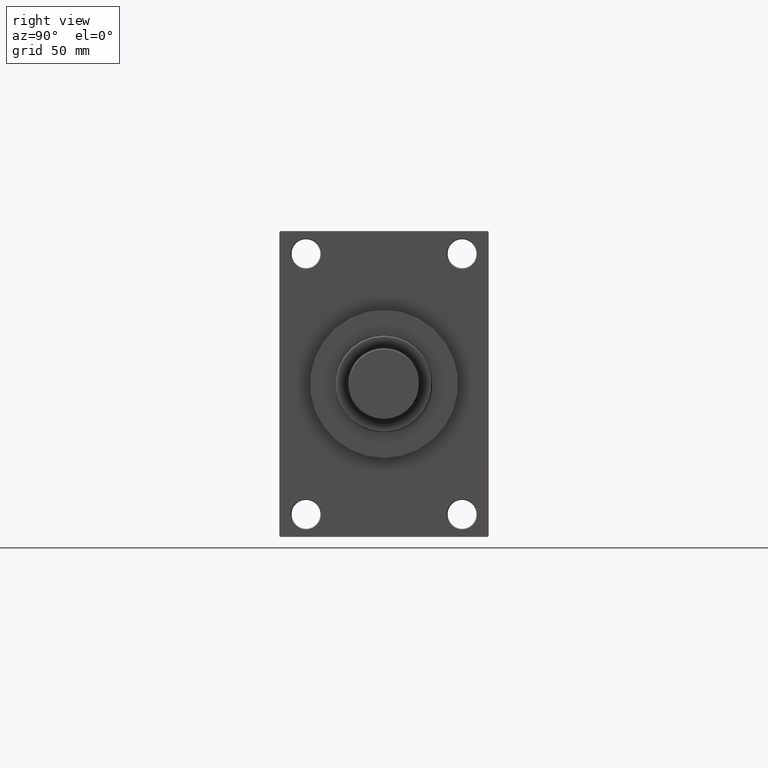
[diagram: clean part render]
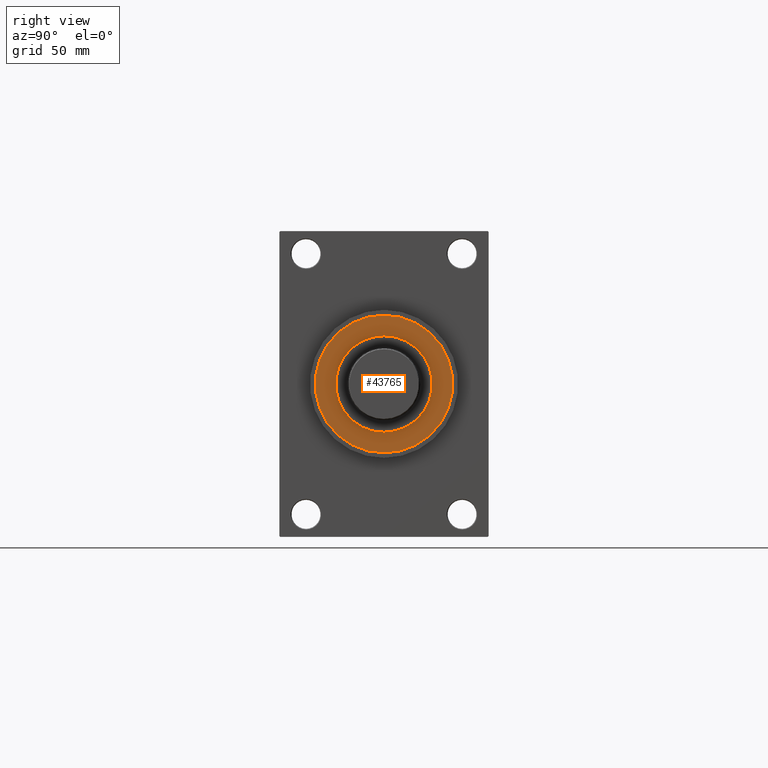
[diagram: same view with one face highlighted and labeled with its STEP entity id]
A machine part, right view. The second image highlights one B-rep face of the part: STEP entity #43765.
In plain terms, the highlighted planar face has unit normal (1, 0, 0).
Its self-contained STEP definition (entity closure, byte-faithful):
#2086 = EDGE_CURVE ( 'NONE', #12652, #16055, #20707, .T. ) ;
#6442 = DIRECTION ( 'NONE',  ( 1.000000000000000000, 0.000000000000000000, 0.000000000000000000 ) ) ;
#6458 = CARTESIAN_POINT ( 'NONE',  ( 42.75000000000000000, 5.235365066354935472E-15, 43.25999999999999801 ) ) ;
#8078 = AXIS2_PLACEMENT_3D ( 'NONE', #18222, #33293, #25516 ) ;
#8112 = DIRECTION ( 'NONE',  ( 0.000000000000000000, 0.000000000000000000, 1.000000000000000000 ) ) ;
#8527 = AXIS2_PLACEMENT_3D ( 'NONE', #23403, #27789, #19297 ) ;
#8643 = EDGE_CURVE ( 'NONE', #39230, #18207, #24411, .T. ) ;
#12652 = VERTEX_POINT ( 'NONE', #16513 ) ;
#13020 = EDGE_LOOP ( 'NONE', ( #37305, #38918 ) ) ;
#15259 = CIRCLE ( 'NONE', #31561, 30.00000000000000000 ) ;
#16055 = VERTEX_POINT ( 'NONE', #6458 ) ;
#16513 = CARTESIAN_POINT ( 'NONE',  ( -42.75000000000000000, 0.000000000000000000, 43.25999999999999801 ) ) ;
#16546 = ORIENTED_EDGE ( 'NONE', *, *, #8643, .F. ) ;
#16852 = EDGE_CURVE ( 'NONE', #18207, #39230, #15259, .T. ) ;
#17410 = DIRECTION ( 'NONE',  ( 0.000000000000000000, 0.000000000000000000, 1.000000000000000000 ) ) ;
#18207 = VERTEX_POINT ( 'NONE', #30683 ) ;
#18222 = CARTESIAN_POINT ( 'NONE',  ( 0.000000000000000000, 0.000000000000000000, 43.25999999999999801 ) ) ;
#18424 = CARTESIAN_POINT ( 'NONE',  ( 30.00000000000000000, 3.673940397442059178E-15, 43.25999999999999801 ) ) ;
#19297 = DIRECTION ( 'NONE',  ( 1.000000000000000000, 0.000000000000000000, 0.000000000000000000 ) ) ;
#20673 = EDGE_LOOP ( 'NONE', ( #40299, #16546 ) ) ;
#20707 = CIRCLE ( 'NONE', #33125, 42.75000000000000000 ) ;
#23403 = CARTESIAN_POINT ( 'NONE',  ( 0.000000000000000000, 0.000000000000000000, 43.25999999999999801 ) ) ;
#24411 = CIRCLE ( 'NONE', #43062, 30.00000000000000000 ) ;
#24684 = CARTESIAN_POINT ( 'NONE',  ( 0.000000000000000000, 0.000000000000000000, 43.25999999999999801 ) ) ;
#25516 = DIRECTION ( 'NONE',  ( 1.000000000000000000, 0.000000000000000000, -0.000000000000000000 ) ) ;
#26373 = CARTESIAN_POINT ( 'NONE',  ( 0.000000000000000000, 0.000000000000000000, 43.25999999999999801 ) ) ;
#27789 = DIRECTION ( 'NONE',  ( 0.000000000000000000, 0.000000000000000000, 1.000000000000000000 ) ) ;
#28929 = FACE_OUTER_BOUND ( 'NONE', #13020, .T. ) ;
#28964 = EDGE_CURVE ( 'NONE', #16055, #12652, #37272, .T. ) ;
#30683 = CARTESIAN_POINT ( 'NONE',  ( -30.00000000000000000, 0.000000000000000000, 43.25999999999999801 ) ) ;
#31561 = AXIS2_PLACEMENT_3D ( 'NONE', #24684, #46581, #36103 ) ;
#33053 = PLANE ( 'NONE',  #8078 ) ;
#33125 = AXIS2_PLACEMENT_3D ( 'NONE', #26373, #8112, #45331 ) ;
#33293 = DIRECTION ( 'NONE',  ( 0.000000000000000000, 0.000000000000000000, 1.000000000000000000 ) ) ;
#35873 = CARTESIAN_POINT ( 'NONE',  ( 0.000000000000000000, 0.000000000000000000, 43.25999999999999801 ) ) ;
#36103 = DIRECTION ( 'NONE',  ( 1.000000000000000000, 0.000000000000000000, 0.000000000000000000 ) ) ;
#37272 = CIRCLE ( 'NONE', #8527, 42.75000000000000000 ) ;
#37305 = ORIENTED_EDGE ( 'NONE', *, *, #2086, .T. ) ;
#38918 = ORIENTED_EDGE ( 'NONE', *, *, #28964, .T. ) ;
#39230 = VERTEX_POINT ( 'NONE', #18424 ) ;
#39869 = FACE_BOUND ( 'NONE', #20673, .T. ) ;
#40299 = ORIENTED_EDGE ( 'NONE', *, *, #16852, .F. ) ;
#43062 = AXIS2_PLACEMENT_3D ( 'NONE', #35873, #17410, #6442 ) ;
#43765 = ADVANCED_FACE ( 'NONE', ( #39869, #28929 ), #33053, .T. ) ;
#45331 = DIRECTION ( 'NONE',  ( 1.000000000000000000, 0.000000000000000000, 0.000000000000000000 ) ) ;
#46581 = DIRECTION ( 'NONE',  ( 0.000000000000000000, 0.000000000000000000, 1.000000000000000000 ) ) ;